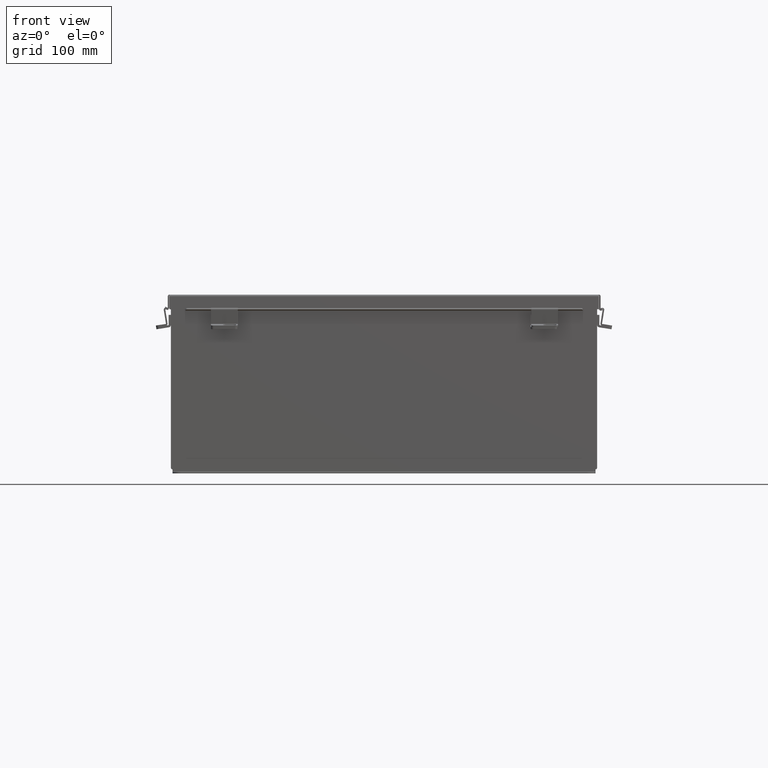
[diagram: clean part render]
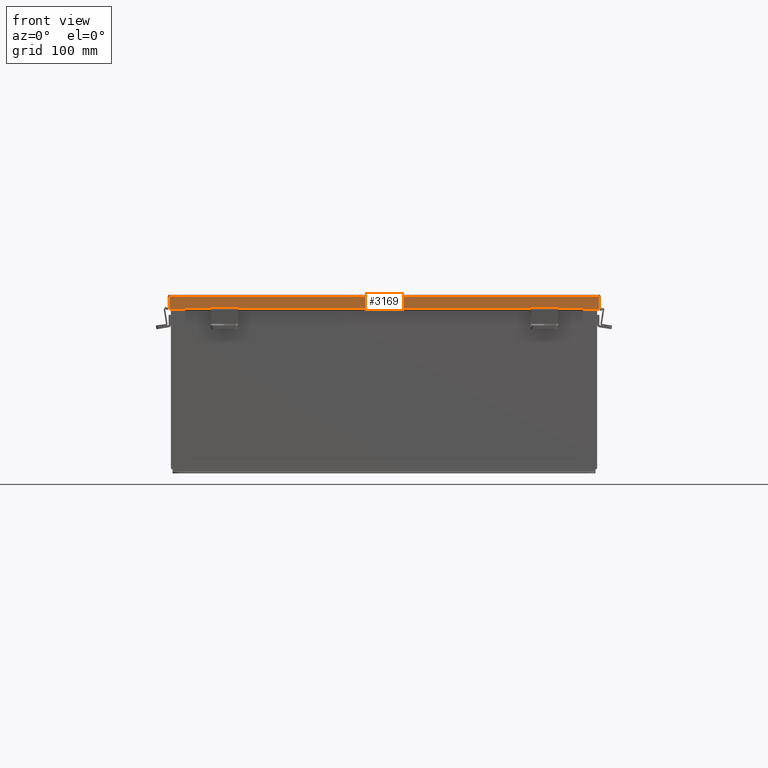
[diagram: same view with one face highlighted and labeled with its STEP entity id]
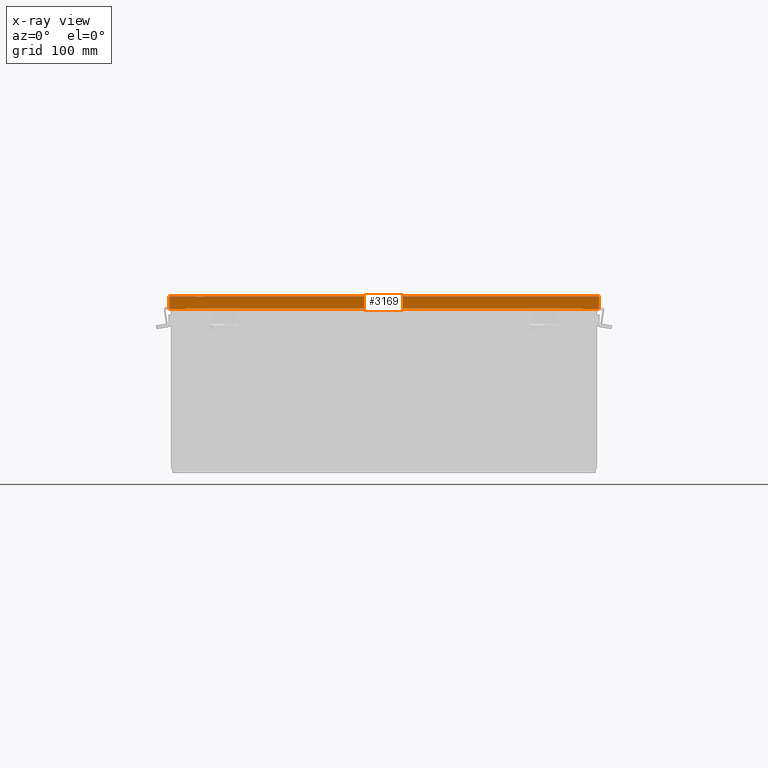
[diagram: x-ray of the same camera — body ghosted, the highlighted face saturated]
A machine part, front view. The second image highlights one B-rep face of the part: STEP entity #3169.
The next image is the same camera in x-ray: the body ghosted, the highlighted face saturated — about 0% of this face is hidden behind the body in this view.
In plain terms, the highlighted planar face has unit normal (0, 1, -0).
Its self-contained STEP definition (entity closure, byte-faithful):
#83 = EDGE_CURVE ( 'NONE', #784, #7688, #9968, .T. ) ;
#99 = CARTESIAN_POINT ( 'NONE',  ( -9.324478932188164000, -12.15625000000000200, 0.5967115427318826500 ) ) ;
#228 = LINE ( 'NONE', #6886, #8940 ) ;
#441 = VERTEX_POINT ( 'NONE', #8672 ) ;
#537 = EDGE_CURVE ( 'NONE', #441, #7013, #900, .T. ) ;
#638 = VECTOR ( 'NONE', #1059, 39.37007874015748100 ) ;
#731 = DIRECTION ( 'NONE',  ( 0.0000000000000000000, 1.401985044024318400E-013, 1.000000000000000000 ) ) ;
#784 = VERTEX_POINT ( 'NONE', #2033 ) ;
#789 = CARTESIAN_POINT ( 'NONE',  ( 10.07447893218817100, -12.15625000000000000, 0.6122999999999994000 ) ) ;
#900 = LINE ( 'NONE', #1051, #2471 ) ;
#1051 = CARTESIAN_POINT ( 'NONE',  ( -9.324478932188164000, -12.15625000000000000, 0.6123000000000005100 ) ) ;
#1057 = ORIENTED_EDGE ( 'NONE', *, *, #2117, .T. ) ;
#1059 = DIRECTION ( 'NONE',  ( 0.0000000000000000000, -3.569293475308494500E-015, 1.000000000000000000 ) ) ;
#1083 = CARTESIAN_POINT ( 'NONE',  ( -10.07447893218816200, -12.15625000000000000, 0.6123000000000005100 ) ) ;
#1507 = DIRECTION ( 'NONE',  ( -0.0000000000000000000, -3.569293475308494500E-015, 1.000000000000000000 ) ) ;
#1589 = VECTOR ( 'NONE', #9501, 39.37007874015748100 ) ;
#1700 = ORIENTED_EDGE ( 'NONE', *, *, #537, .F. ) ;
#1830 = CARTESIAN_POINT ( 'NONE',  ( 9.324478932188171100, -12.15625000000000000, 0.5967115427318815400 ) ) ;
#1994 = VERTEX_POINT ( 'NONE', #1830 ) ;
#2013 = FACE_OUTER_BOUND ( 'NONE', #2434, .T. ) ;
#2033 = CARTESIAN_POINT ( 'NONE',  ( 10.07447893218817100, -12.15624999999999800, 0.01300000000000447800 ) ) ;
#2117 = EDGE_CURVE ( 'NONE', #6950, #6926, #9977, .T. ) ;
#2434 = EDGE_LOOP ( 'NONE', ( #1700, #9602, #4207, #7469, #4637, #1057, #3938, #3555 ) ) ;
#2471 = VECTOR ( 'NONE', #9524, 39.37007874015748100 ) ;
#2590 = CARTESIAN_POINT ( 'NONE',  ( 1.301896309480625400E-015, -12.15625000000000000, 0.6123000000000080600 ) ) ;
#2705 = LINE ( 'NONE', #4143, #638 ) ;
#2767 = VECTOR ( 'NONE', #731, 39.37007874015748100 ) ;
#2848 = CARTESIAN_POINT ( 'NONE',  ( 1.307231950093251000E-015, -12.15624999999999800, -4.261682870116250900E-014 ) ) ;
#2911 = DIRECTION ( 'NONE',  ( -1.075927825196970900E-016, 1.000000000000000000, 3.569293475308493700E-015 ) ) ;
#3169 = ADVANCED_FACE ( 'NONE', ( #2013 ), #7514, .F. ) ;
#3555 = ORIENTED_EDGE ( 'NONE', *, *, #5648, .F. ) ;
#3825 = VECTOR ( 'NONE', #9627, 39.37007874015748100 ) ;
#3938 = ORIENTED_EDGE ( 'NONE', *, *, #9681, .F. ) ;
#4143 = CARTESIAN_POINT ( 'NONE',  ( 10.07447893218817100, -12.15624999999999800, -4.370956789862821100E-014 ) ) ;
#4207 = ORIENTED_EDGE ( 'NONE', *, *, #4620, .F. ) ;
#4255 = CARTESIAN_POINT ( 'NONE',  ( -10.07447893218816600, -12.15625000000000000, 0.01300000000000010700 ) ) ;
#4620 = EDGE_CURVE ( 'NONE', #7688, #9973, #228, .T. ) ;
#4637 = ORIENTED_EDGE ( 'NONE', *, *, #7113, .T. ) ;
#4990 = AXIS2_PLACEMENT_3D ( 'NONE', #2848, #2911, #8302 ) ;
#5484 = DIRECTION ( 'NONE',  ( 1.000000000000000000, 3.215975411700707400E-030, -0.0000000000000000000 ) ) ;
#5556 = CARTESIAN_POINT ( 'NONE',  ( -10.15625000000003200, -12.15625000000000000, 0.01299999999999901400 ) ) ;
#5648 = EDGE_CURVE ( 'NONE', #7013, #1994, #7937, .T. ) ;
#6099 = CARTESIAN_POINT ( 'NONE',  ( 9.324478932188171100, -12.15625000000000200, 0.5967115427318815400 ) ) ;
#6554 = CARTESIAN_POINT ( 'NONE',  ( 1.301896309480625400E-015, -12.15625000000000000, 0.6123000000000080600 ) ) ;
#6838 = LINE ( 'NONE', #6099, #2767 ) ;
#6881 = CARTESIAN_POINT ( 'NONE',  ( 9.324478932188171100, -12.15625000000000000, 0.6122999999999994000 ) ) ;
#6886 = CARTESIAN_POINT ( 'NONE',  ( -10.07447893218816200, -12.15624999999999800, 0.0000000000000000000 ) ) ;
#6926 = VERTEX_POINT ( 'NONE', #6881 ) ;
#6950 = VERTEX_POINT ( 'NONE', #789 ) ;
#7013 = VERTEX_POINT ( 'NONE', #9316 ) ;
#7113 = EDGE_CURVE ( 'NONE', #784, #6950, #2705, .T. ) ;
#7469 = ORIENTED_EDGE ( 'NONE', *, *, #83, .F. ) ;
#7501 = LINE ( 'NONE', #2590, #1589 ) ;
#7514 = PLANE ( 'NONE',  #4990 ) ;
#7568 = EDGE_CURVE ( 'NONE', #441, #9973, #7501, .T. ) ;
#7658 = VECTOR ( 'NONE', #7894, 39.37007874015748100 ) ;
#7688 = VERTEX_POINT ( 'NONE', #4255 ) ;
#7894 = DIRECTION ( 'NONE',  ( -1.000000000000000000, -1.075927825197026500E-016, -2.151855650394007300E-016 ) ) ;
#7937 = LINE ( 'NONE', #99, #8195 ) ;
#8195 = VECTOR ( 'NONE', #5484, 39.37007874015748100 ) ;
#8302 = DIRECTION ( 'NONE',  ( 0.0000000000000000000, -3.569293475308493700E-015, 1.000000000000000000 ) ) ;
#8672 = CARTESIAN_POINT ( 'NONE',  ( -9.324478932188164000, -12.15625000000000000, 0.6123000000000005100 ) ) ;
#8940 = VECTOR ( 'NONE', #1507, 39.37007874015748100 ) ;
#9316 = CARTESIAN_POINT ( 'NONE',  ( -9.324478932188162300, -12.15625000000000000, 0.5967115427318826500 ) ) ;
#9501 = DIRECTION ( 'NONE',  ( -1.000000000000000000, -1.075927825197030600E-016, 3.362274453740340600E-018 ) ) ;
#9524 = DIRECTION ( 'NONE',  ( 7.009925220121877200E-014, -1.401985044024373700E-013, -1.000000000000000000 ) ) ;
#9602 = ORIENTED_EDGE ( 'NONE', *, *, #7568, .T. ) ;
#9627 = DIRECTION ( 'NONE',  ( -1.000000000000000000, -1.075927825197030600E-016, 3.362274453740340600E-018 ) ) ;
#9681 = EDGE_CURVE ( 'NONE', #1994, #6926, #6838, .T. ) ;
#9968 = LINE ( 'NONE', #5556, #7658 ) ;
#9973 = VERTEX_POINT ( 'NONE', #1083 ) ;
#9977 = LINE ( 'NONE', #6554, #3825 ) ;